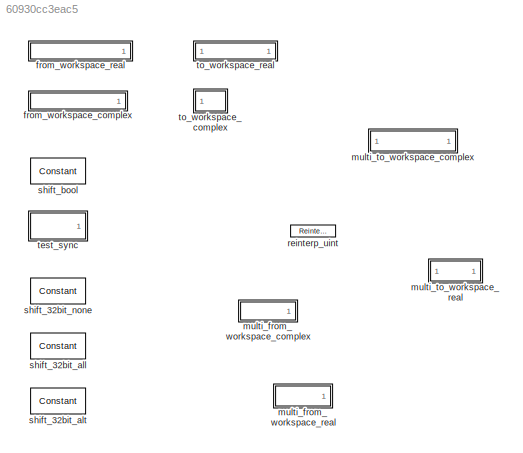
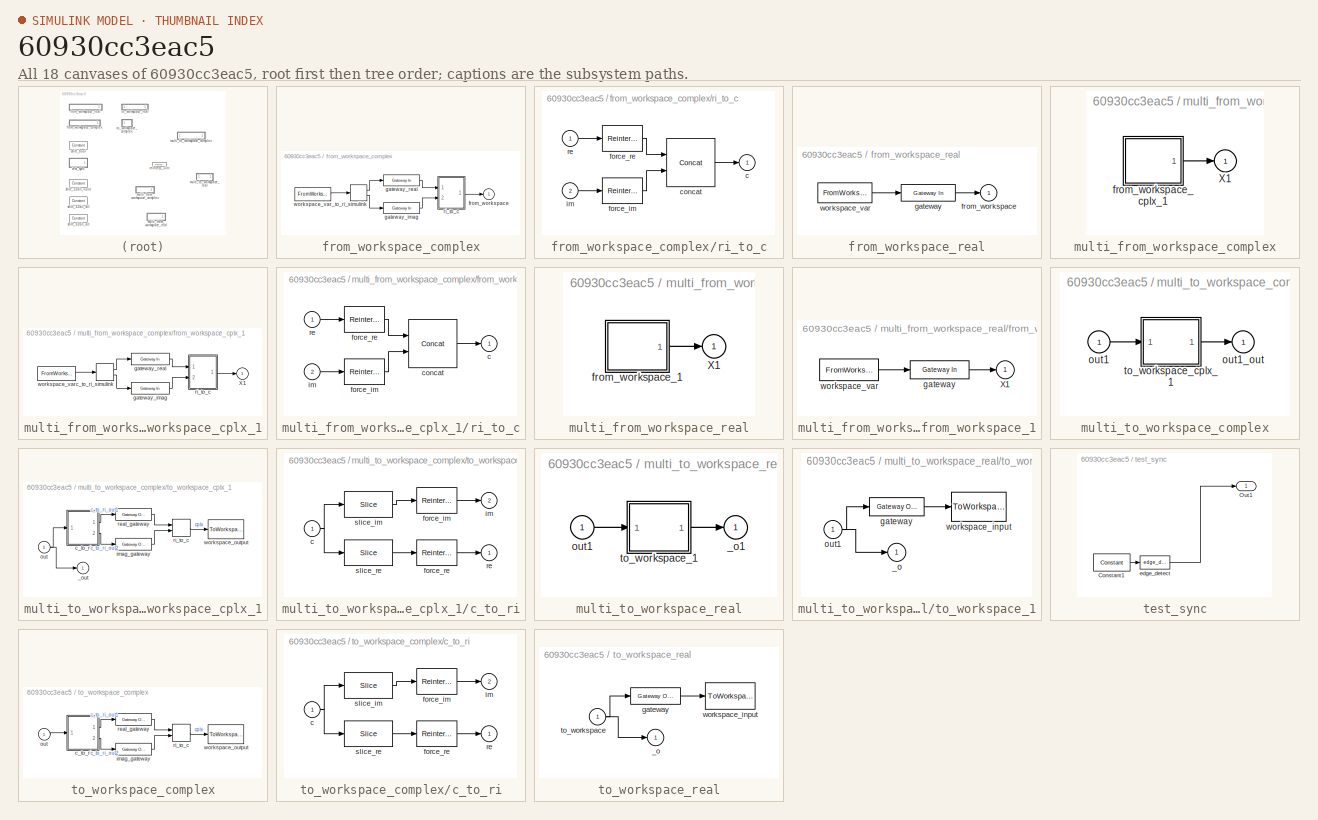
[diagram: thumbnail index - all 18 canvases of the model, root first then tree order]
MODEL slx_60930cc3eac5
KIND library
BLOCK [SubSystem] from_workspace_complex
  FunctionWithSeparateData = off
  MaskHideContents = off
  MinAlgLoopOccurrences = off
  Opaque = off
  Ports = [0, 1]
  PropExecContextOutsideSubsystem = off
  RTWSystemCode = Auto
  RequestExecContextInheritance = off
  UserDataPersistent = on
BLOCK [ComplexToRealImag] from_workspace_complex/c_to_ri_simulink
  Ports = [1, 2]
BLOCK [Outport] from_workspace_complex/from_workspace
  IconDisplay = Port number
BLOCK [Reference] from_workspace_complex/gateway_imag  REF=xbsIndex_r4/Gateway In
  ADCChannel = '1'
  LOCs = {}
  Ports = [1, 1]
  SourceBlock = xbsIndex_r4/Gateway In
  SourceType = Xilinx Gateway In Block
  UseAsADC = off
  arith_type = Signed  (2's comp)
  bin_pt = 17
  block_type = gatewayin
  dbl_ovrd = off
  exp_width = 8
  frac_width = 24
  gui_display_data_type = Fixed-point
  has_advanced_control = 0
  hdl_port = on
  infoedit = Gateway in block.  Converts inputs of type Simulink integer, single, double and fixed-point to  Xilinx fixed-point or floating-point data type.<br><br>Hardware notes:  In hardware these blocks become top level input ports.  <repeated x6 — deduplicated; at blocks: gateway_imag, gateway_real, gateway>
  inherit_from_input = off
  locs_specified = off
  n_bits = 18
  overflow = Wrap
  period = 1
  preci_type = Single
  quantization = Truncate
  sg_icon_stat = 65,20,1,1,white,yellow,1,00d3666e,right,,[ ],[ ]
  sg_mask_display = fprintf('','COMMENT: begin icon graphics');\npatch([0 65 65 0 0 ],[0 0 20 20 0 ],[0.95 0.93 0.65 ]);\nplot([0 65 65 0 0 ],[0 0 20 20 0 ]);\npatch([27.55 30.44 32.44 34.44 36.44 32.44 29.55 27.55 ],[12.22 12.22 14.22 12.22 14.22 14.22 14.22 12.22 ],[1 1 1 ]);\npatch([29.55 32.44 30.44 27.55 29.55 ],[10.22 10.22 12.22 12.22 10.22 ],[0.985 0.979 0.895 ]);\npatch([27.55 30.44 32.44 29.55 27.55 ],[8.22 8.22...<+383ch>  <repeated x6 — deduplicated; at blocks: gateway_imag, gateway_real, gateway>
  sggui_pos = -1,-1,-1,-1
  timing_constraint = None
  xl_area = [0,0,0,0,0,0,0]
  xl_use_area = off
BLOCK [Reference] from_workspace_complex/gateway_real  REF=xbsIndex_r4/Gateway In
  ADCChannel = '1'
  LOCs = {}
  Ports = [1, 1]
  SourceBlock = xbsIndex_r4/Gateway In
  SourceType = Xilinx Gateway In Block
  UseAsADC = off
  arith_type = Signed  (2's comp)
  bin_pt = 17
  block_type = gatewayin
  dbl_ovrd = off
  exp_width = 8
  frac_width = 24
  gui_display_data_type = Fixed-point
  has_advanced_control = 0
  hdl_port = on
  inherit_from_input = off
  locs_specified = off
  n_bits = 18
  overflow = Wrap
  period = 1
  preci_type = Single
  quantization = Truncate
  sg_icon_stat = 65,20,1,1,white,yellow,1,00d3666e,right,,[ ],[ ]
  sggui_pos = -1,-1,-1,-1
  timing_constraint = None
  xl_area = [0,0,0,0,0,0,0]
  xl_use_area = off
BLOCK [SubSystem] from_workspace_complex/ri_to_c
  FunctionWithSeparateData = off
  MaskHideContents = off
  MinAlgLoopOccurrences = off
  Opaque = off
  Ports = [2, 1]
  PropExecContextOutsideSubsystem = off
  RTWSystemCode = Auto
  RequestExecContextInheritance = off
BLOCK [Outport] from_workspace_complex/ri_to_c/c
  IconDisplay = Port number
BLOCK [Reference] from_workspace_complex/ri_to_c/concat  REF=xbsIndex_r4/Concat
  Ports = [2, 1]
  SourceBlock = xbsIndex_r4/Concat
  SourceType = Xilinx Bus Concatenator Block
  block_type = concat
  dbl_ovrd = off
  has_advanced_control = 0
  infoedit = Concatenates two or more inputs.  Output will be cast to an unsigned value with the binary point at zero.
  num_inputs = 2
  sg_icon_stat = 60,60,2,1,white,blue,0,16398980,right,,[ ],[ ]
  sg_mask_display = fprintf('','COMMENT: begin icon graphics');\npatch([0 60 60 0 0 ],[0 0 60 60 0 ],[0.77 0.82 0.91 ]);\nplot([0 60 60 0 0 ],[0 0 60 60 0 ]);\npatch([12.2 23.76 31.76 39.76 47.76 31.76 20.2 12.2 ],[38.88 38.88 46.88 38.88 46.88 46.88 46.88 38.88 ],[1 1 1 ]);\npatch([20.2 31.76 23.76 12.2 20.2 ],[30.88 30.88 38.88 38.88 30.88 ],[0.931 0.946 0.973 ]);\npatch([12.2 23.76 31.76 20.2 12.2 ],[22.88 22.88 30.88 ...<+402ch>
  sggui_pos = -1,-1,-1,-1
BLOCK [Reference] from_workspace_complex/ri_to_c/force_im  REF=xbsIndex_r4/Reinterpret
  Ports = [1, 1]
  SourceBlock = xbsIndex_r4/Reinterpret
  SourceType = Xilinx Type Reinterpreter Block
  arith_type = Unsigned
  bin_pt = 0
  block_type = reinterpret
  force_arith_type = on
  force_bin_pt = on
  has_advanced_control = 0
  infoedit = Changes signal type without altering the binary representation.   You can change the signal between signed and unsigned, and relocate the binary point.<br><br>Hardware notes: In hardware this block costs nothing.<br><br>Example:  Suppose the input is 6 bits wide, signed, with 2 fractional bits, and the output is forced to unsigned with 0 fractional bits.  Then an input of -2.0 (1110.00 in binary 2...<+58ch>  <repeated x9 — deduplicated; at blocks: force_im, force_re, reinterp_uint>
  sg_icon_stat = 50,32,1,1,white,blue,0,6b04d0b0,right,,[ ],[ ]
  sg_mask_display = fprintf('','COMMENT: begin icon graphics');\npatch([0 50 50 0 0 ],[0 0 32 32 0 ],[0.77 0.82 0.91 ]);\nplot([0 50 50 0 0 ],[0 0 32 32 0 ]);\npatch([16.1 21.88 25.88 29.88 33.88 25.88 20.1 16.1 ],[20.44 20.44 24.44 20.44 24.44 24.44 24.44 20.44 ],[1 1 1 ]);\npatch([20.1 25.88 21.88 16.1 20.1 ],[16.44 16.44 20.44 20.44 16.44 ],[0.931 0.946 0.973 ]);\npatch([16.1 21.88 25.88 20.1 16.1 ],[12.44 12.44 16.44 ...<+294ch>  <repeated x8 — deduplicated; at blocks: force_im, force_re>
  sggui_pos = -1,-1,-1,-1
BLOCK [Reference] from_workspace_complex/ri_to_c/force_re  REF=xbsIndex_r4/Reinterpret
  Ports = [1, 1]
  SourceBlock = xbsIndex_r4/Reinterpret
  SourceType = Xilinx Type Reinterpreter Block
  arith_type = Unsigned
  bin_pt = 0
  block_type = reinterpret
  force_arith_type = on
  force_bin_pt = on
  has_advanced_control = 0
  sg_icon_stat = 50,32,1,1,white,blue,0,6b04d0b0,right,,[ ],[ ]
  sggui_pos = -1,-1,-1,-1
BLOCK [Inport] from_workspace_complex/ri_to_c/im
  IconDisplay = Port number
  Port = 2
BLOCK [Inport] from_workspace_complex/ri_to_c/re
  IconDisplay = Port number
BLOCK [FromWorkspace] from_workspace_complex/workspace_var
  SampleTime = 0
  VariableName = from_workspace
  ZeroCross = on
BLOCK [SubSystem] from_workspace_real
  FunctionWithSeparateData = off
  MaskHideContents = off
  MinAlgLoopOccurrences = off
  Opaque = off
  Ports = [0, 1]
  PropExecContextOutsideSubsystem = off
  RTWSystemCode = Auto
  RequestExecContextInheritance = off
  UserDataPersistent = on
BLOCK [Outport] from_workspace_real/from_workspace
  IconDisplay = Port number
BLOCK [Reference] from_workspace_real/gateway  REF=xbsIndex_r4/Gateway In
  ADCChannel = '1'
  LOCs = {}
  Ports = [1, 1]
  SourceBlock = xbsIndex_r4/Gateway In
  SourceType = Xilinx Gateway In Block
  UseAsADC = off
  arith_type = Signed  (2's comp)
  bin_pt = 17
  block_type = gatewayin
  dbl_ovrd = off
  exp_width = 8
  frac_width = 24
  gui_display_data_type = Fixed-point
  has_advanced_control = 0
  hdl_port = on
  inherit_from_input = off
  locs_specified = off
  n_bits = 18
  overflow = Wrap
  period = 1
  preci_type = Single
  quantization = Truncate
  sg_icon_stat = 65,20,1,1,white,yellow,1,00d3666e,right,,[ ],[ ]
  sggui_pos = -1,-1,-1,-1
  timing_constraint = None
  xl_area = [0,0,0,0,0,0,0]
  xl_use_area = off
BLOCK [FromWorkspace] from_workspace_real/workspace_var
  SampleTime = 0
  VariableName = from_workspace
  ZeroCross = on
BLOCK [SubSystem] multi_from_workspace_complex
  FunctionWithSeparateData = off
  MaskHideContents = off
  MinAlgLoopOccurrences = off
  Opaque = off
  Ports = [0, 1]
  PropExecContextOutsideSubsystem = off
  RTWSystemCode = Auto
  RequestExecContextInheritance = off
  UserDataPersistent = on
BLOCK [Outport] multi_from_workspace_complex/X1
  IconDisplay = Port number
BLOCK [SubSystem] multi_from_workspace_complex/from_workspace_cplx_1
  FunctionWithSeparateData = off
  MaskHideContents = off
  MinAlgLoopOccurrences = off
  Opaque = off
  Ports = [0, 1]
  PropExecContextOutsideSubsystem = off
  RTWSystemCode = Auto
  RequestExecContextInheritance = off
BLOCK [Outport] multi_from_workspace_complex/from_workspace_cplx_1/X1
  IconDisplay = Port number
BLOCK [ComplexToRealImag] multi_from_workspace_complex/from_workspace_cplx_1/c_to_ri_simulink
  Ports = [1, 2]
BLOCK [Reference] multi_from_workspace_complex/from_workspace_cplx_1/gateway_imag  REF=xbsIndex_r4/Gateway In
  ADCChannel = '1'
  LOCs = {}
  Ports = [1, 1]
  SourceBlock = xbsIndex_r4/Gateway In
  SourceType = Xilinx Gateway In Block
  UseAsADC = off
  arith_type = Signed  (2's comp)
  bin_pt = 17
  block_type = gatewayin
  dbl_ovrd = off
  exp_width = 8
  frac_width = 24
  gui_display_data_type = Fixed-point
  has_advanced_control = 0
  hdl_port = on
  inherit_from_input = off
  locs_specified = off
  n_bits = 18
  overflow = Wrap
  period = 1
  preci_type = Single
  quantization = Truncate
  sg_icon_stat = 65,20,1,1,white,yellow,1,00d3666e,right,,[ ],[ ]
  sggui_pos = -1,-1,-1,-1
  timing_constraint = None
  xl_area = [0,0,0,0,0,0,0]
  xl_use_area = off
BLOCK [Reference] multi_from_workspace_complex/from_workspace_cplx_1/gateway_real  REF=xbsIndex_r4/Gateway In
  ADCChannel = '1'
  LOCs = {}
  Ports = [1, 1]
  SourceBlock = xbsIndex_r4/Gateway In
  SourceType = Xilinx Gateway In Block
  UseAsADC = off
  arith_type = Signed  (2's comp)
  bin_pt = 17
  block_type = gatewayin
  dbl_ovrd = off
  exp_width = 8
  frac_width = 24
  gui_display_data_type = Fixed-point
  has_advanced_control = 0
  hdl_port = on
  inherit_from_input = off
  locs_specified = off
  n_bits = 18
  overflow = Wrap
  period = 1
  preci_type = Single
  quantization = Truncate
  sg_icon_stat = 65,20,1,1,white,yellow,1,00d3666e,right,,[ ],[ ]
  sggui_pos = -1,-1,-1,-1
  timing_constraint = None
  xl_area = [0,0,0,0,0,0,0]
  xl_use_area = off
BLOCK [SubSystem] multi_from_workspace_complex/from_workspace_cplx_1/ri_to_c
  FunctionWithSeparateData = off
  MaskHideContents = off
  MinAlgLoopOccurrences = off
  Opaque = off
  Ports = [2, 1]
  PropExecContextOutsideSubsystem = off
  RTWSystemCode = Auto
  RequestExecContextInheritance = off
BLOCK [Outport] multi_from_workspace_complex/from_workspace_cplx_1/ri_to_c/c
  IconDisplay = Port number
BLOCK [Reference] multi_from_workspace_complex/from_workspace_cplx_1/ri_to_c/concat  REF=xbsIndex_r4/Concat
  Ports = [2, 1]
  SourceBlock = xbsIndex_r4/Concat
  SourceType = Xilinx Bus Concatenator Block
  block_type = concat
  dbl_ovrd = off
  has_advanced_control = 0
  infoedit = Concatenates two or more inputs.  Output will be cast to an unsigned value with the binary point at zero.
  num_inputs = 2
  sg_icon_stat = 60,60,2,1,white,blue,0,16398980,right,,[ ],[ ]
  sg_mask_display = fprintf('','COMMENT: begin icon graphics');\npatch([0 60 60 0 0 ],[0 0 60 60 0 ],[0.77 0.82 0.91 ]);\nplot([0 60 60 0 0 ],[0 0 60 60 0 ]);\npatch([12.2 23.76 31.76 39.76 47.76 31.76 20.2 12.2 ],[38.88 38.88 46.88 38.88 46.88 46.88 46.88 38.88 ],[1 1 1 ]);\npatch([20.2 31.76 23.76 12.2 20.2 ],[30.88 30.88 38.88 38.88 30.88 ],[0.931 0.946 0.973 ]);\npatch([12.2 23.76 31.76 20.2 12.2 ],[22.88 22.88 30.88 ...<+402ch>
  sggui_pos = -1,-1,-1,-1
BLOCK [Reference] multi_from_workspace_complex/from_workspace_cplx_1/ri_to_c/force_im  REF=xbsIndex_r4/Reinterpret
  Ports = [1, 1]
  SourceBlock = xbsIndex_r4/Reinterpret
  SourceType = Xilinx Type Reinterpreter Block
  arith_type = Unsigned
  bin_pt = 0
  block_type = reinterpret
  force_arith_type = on
  force_bin_pt = on
  has_advanced_control = 0
  sg_icon_stat = 50,32,1,1,white,blue,0,6b04d0b0,right,,[ ],[ ]
  sggui_pos = -1,-1,-1,-1
BLOCK [Reference] multi_from_workspace_complex/from_workspace_cplx_1/ri_to_c/force_re  REF=xbsIndex_r4/Reinterpret
  Ports = [1, 1]
  SourceBlock = xbsIndex_r4/Reinterpret
  SourceType = Xilinx Type Reinterpreter Block
  arith_type = Unsigned
  bin_pt = 0
  block_type = reinterpret
  force_arith_type = on
  force_bin_pt = on
  has_advanced_control = 0
  sg_icon_stat = 50,32,1,1,white,blue,0,6b04d0b0,right,,[ ],[ ]
  sggui_pos = -1,-1,-1,-1
BLOCK [Inport] multi_from_workspace_complex/from_workspace_cplx_1/ri_to_c/im
  IconDisplay = Port number
  Port = 2
BLOCK [Inport] multi_from_workspace_complex/from_workspace_cplx_1/ri_to_c/re
  IconDisplay = Port number
BLOCK [FromWorkspace] multi_from_workspace_complex/from_workspace_cplx_1/workspace_var
  SampleTime = 0
  VariableName = X1
  ZeroCross = on
BLOCK [SubSystem] multi_from_workspace_real
  FunctionWithSeparateData = off
  MaskHideContents = off
  MinAlgLoopOccurrences = off
  Opaque = off
  Ports = [0, 1]
  PropExecContextOutsideSubsystem = off
  RTWSystemCode = Auto
  RequestExecContextInheritance = off
  UserDataPersistent = on
BLOCK [Outport] multi_from_workspace_real/X1
  IconDisplay = Port number
BLOCK [SubSystem] multi_from_workspace_real/from_workspace_1
  FunctionWithSeparateData = off
  MaskHideContents = off
  MinAlgLoopOccurrences = off
  Opaque = off
  Ports = [0, 1]
  PropExecContextOutsideSubsystem = off
  RTWSystemCode = Auto
  RequestExecContextInheritance = off
BLOCK [Outport] multi_from_workspace_real/from_workspace_1/X1
  IconDisplay = Port number
BLOCK [Reference] multi_from_workspace_real/from_workspace_1/gateway  REF=xbsIndex_r4/Gateway In
  ADCChannel = '1'
  LOCs = {}
  Ports = [1, 1]
  SourceBlock = xbsIndex_r4/Gateway In
  SourceType = Xilinx Gateway In Block
  UseAsADC = off
  arith_type = Signed  (2's comp)
  bin_pt = 17
  block_type = gatewayin
  dbl_ovrd = off
  exp_width = 8
  frac_width = 24
  gui_display_data_type = Fixed-point
  has_advanced_control = 0
  hdl_port = on
  inherit_from_input = off
  locs_specified = off
  n_bits = 18
  overflow = Wrap
  period = 1
  preci_type = Single
  quantization = Truncate
  sg_icon_stat = 65,20,1,1,white,yellow,1,00d3666e,right,,[ ],[ ]
  sggui_pos = -1,-1,-1,-1
  timing_constraint = None
  xl_area = [0,0,0,0,0,0,0]
  xl_use_area = off
BLOCK [FromWorkspace] multi_from_workspace_real/from_workspace_1/workspace_var
  SampleTime = 0
  VariableName = X1
  ZeroCross = on
BLOCK [SubSystem] multi_to_workspace_complex
  FunctionWithSeparateData = off
  MaskHideContents = off
  MinAlgLoopOccurrences = off
  Opaque = off
  Ports = [1, 1]
  PropExecContextOutsideSubsystem = off
  RTWSystemCode = Auto
  RequestExecContextInheritance = off
BLOCK [Inport] multi_to_workspace_complex/out1
  IconDisplay = Port number
BLOCK [Outport] multi_to_workspace_complex/out1_out
  IconDisplay = Port number
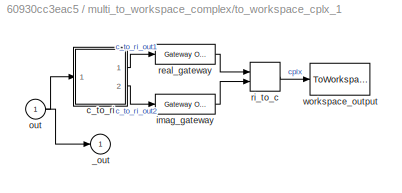
BLOCK [SubSystem] multi_to_workspace_complex/to_workspace_cplx_1
  FunctionWithSeparateData = off
  MaskHideContents = off
  MinAlgLoopOccurrences = off
  Opaque = off
  Ports = [1, 1]
  PropExecContextOutsideSubsystem = off
  RTWSystemCode = Auto
  RequestExecContextInheritance = off
BLOCK [Outport] multi_to_workspace_complex/to_workspace_cplx_1/_out
  IconDisplay = Port number
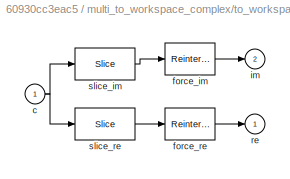
BLOCK [SubSystem] multi_to_workspace_complex/to_workspace_cplx_1/c_to_ri
  FunctionWithSeparateData = off
  MaskHideContents = off
  MinAlgLoopOccurrences = off
  Opaque = off
  Ports = [1, 2]
  PropExecContextOutsideSubsystem = off
  RTWSystemCode = Auto
  RequestExecContextInheritance = off
BLOCK [Inport] multi_to_workspace_complex/to_workspace_cplx_1/c_to_ri/c
  IconDisplay = Port number
BLOCK [Reference] multi_to_workspace_complex/to_workspace_cplx_1/c_to_ri/force_im  REF=xbsIndex_r4/Reinterpret
  Ports = [1, 1]
  SourceBlock = xbsIndex_r4/Reinterpret
  SourceType = Xilinx Type Reinterpreter Block
  arith_type = Signed  (2's comp)
  bin_pt = 17
  block_type = reinterpret
  force_arith_type = on
  force_bin_pt = on
  has_advanced_control = 0
  sg_icon_stat = 50,32,1,1,white,blue,0,6b04d0b0,right,,[ ],[ ]
  sggui_pos = -1,-1,-1,-1
BLOCK [Reference] multi_to_workspace_complex/to_workspace_cplx_1/c_to_ri/force_re  REF=xbsIndex_r4/Reinterpret
  Ports = [1, 1]
  SourceBlock = xbsIndex_r4/Reinterpret
  SourceType = Xilinx Type Reinterpreter Block
  arith_type = Signed  (2's comp)
  bin_pt = 17
  block_type = reinterpret
  force_arith_type = on
  force_bin_pt = on
  has_advanced_control = 0
  sg_icon_stat = 50,32,1,1,white,blue,0,6b04d0b0,right,,[ ],[ ]
  sggui_pos = -1,-1,-1,-1
BLOCK [Outport] multi_to_workspace_complex/to_workspace_cplx_1/c_to_ri/im
  IconDisplay = Port number
  Port = 2
BLOCK [Outport] multi_to_workspace_complex/to_workspace_cplx_1/c_to_ri/re
  IconDisplay = Port number
BLOCK [Reference] multi_to_workspace_complex/to_workspace_cplx_1/c_to_ri/slice_im  REF=xbsIndex_r4/Slice
  Ports = [1, 1]
  SourceBlock = xbsIndex_r4/Slice
  SourceType = Xilinx Bit Slice Extractor Block
  base0 = LSB of Input
  base1 = MSB of Input
  bit0 = 0
  bit1 = 0
  block_type = slice
  boolean_output = off
  dbl_ovrd = off
  has_advanced_control = 0
  infoedit = Extracts a given range of bits from each input sample and presents it at the output.  The output type is ordinarily unsigned with binary point at zero, but can be Boolean when the slice is one bit wide.<br><br>Hardware notes: In hardware this block costs nothing.  <repeated x4 — deduplicated; at blocks: slice_im, slice_re>
  mode = Lower Bit Location + Width
  nbits = 18
  sg_icon_stat = 60,32,1,1,white,blue,0,1fd851a7,right,,[ ],[ ]
  sg_mask_display = fprintf('','COMMENT: begin icon graphics');\npatch([0 60 60 0 0 ],[0 0 32 32 0 ],[0.77 0.82 0.91 ]);\nplot([0 60 60 0 0 ],[0 0 32 32 0 ]);\npatch([21.1 26.88 30.88 34.88 38.88 30.88 25.1 21.1 ],[20.44 20.44 24.44 20.44 24.44 24.44 24.44 20.44 ],[1 1 1 ]);\npatch([25.1 30.88 26.88 21.1 25.1 ],[16.44 16.44 20.44 20.44 16.44 ],[0.931 0.946 0.973 ]);\npatch([21.1 26.88 30.88 25.1 21.1 ],[12.44 12.44 16.44 ...<+304ch>  <repeated x4 — deduplicated; at blocks: slice_im, slice_re>
  sggui_pos = -1,-1,-1,-1
BLOCK [Reference] multi_to_workspace_complex/to_workspace_cplx_1/c_to_ri/slice_re  REF=xbsIndex_r4/Slice
  Ports = [1, 1]
  SourceBlock = xbsIndex_r4/Slice
  SourceType = Xilinx Bit Slice Extractor Block
  base0 = LSB of Input
  base1 = MSB of Input
  bit0 = 0
  bit1 = 0
  block_type = slice
  boolean_output = off
  dbl_ovrd = off
  has_advanced_control = 0
  mode = Upper Bit Location + Width
  nbits = 18
  sg_icon_stat = 60,32,1,1,white,blue,0,1fd851a7,right,,[ ],[ ]
  sggui_pos = -1,-1,-1,-1
BLOCK [Reference] multi_to_workspace_complex/to_workspace_cplx_1/imag_gateway  REF=xbsIndex_r4/Gateway Out
  DACChannel = '1'
  LOCs = {}
  Ports = [1, 1]
  SourceBlock = xbsIndex_r4/Gateway Out
  SourceType = Xilinx Gateway Out Block
  UseAsDAC = off
  block_type = gatewayout
  has_advanced_control = 0
  hdl_port = off
  infoedit = Gateway out block.  Converts Xilinx fixed-point or floating-point type inputs into ouputs of type Simulink integer, single, double, or fixed-point.<br><br>Hardware notes:  In hardware these blocks become top level output ports or are discarded, depending on how they are configured.  <repeated x6 — deduplicated; at blocks: imag_gateway, real_gateway, gateway>
  inherit_from_input = on
  locs_specified = off
  sg_icon_stat = 60,20,1,1,white,grey,1,632ec840,right,,[ ],[ ]
  sg_mask_display = fprintf('','COMMENT: begin icon graphics');\npatch([0 60 60 0 0 ],[0 0 20 20 0 ],[0.88 0.88 0.88 ]);\nplot([0 60 60 0 0 ],[0 0 20 20 0 ]);\npatch([25.55 28.44 30.44 32.44 34.44 30.44 27.55 25.55 ],[12.22 12.22 14.22 12.22 14.22 14.22 14.22 12.22 ],[1 1 1 ]);\npatch([27.55 30.44 28.44 25.55 27.55 ],[10.22 10.22 12.22 12.22 10.22 ],[0.964 0.964 0.964 ]);\npatch([25.55 28.44 30.44 27.55 25.55 ],[8.22 8.22...<+381ch>  <repeated x6 — deduplicated; at blocks: imag_gateway, real_gateway, gateway>
  sggui_pos = -1,-1,-1,-1
  timing_constraint = None
  xl_area = [0,0,0,0,0,0,0]
  xl_use_area = off
BLOCK [Inport] multi_to_workspace_complex/to_workspace_cplx_1/out
  IconDisplay = Port number
BLOCK [Reference] multi_to_workspace_complex/to_workspace_cplx_1/real_gateway  REF=xbsIndex_r4/Gateway Out
  DACChannel = '1'
  LOCs = {}
  Ports = [1, 1]
  SourceBlock = xbsIndex_r4/Gateway Out
  SourceType = Xilinx Gateway Out Block
  UseAsDAC = off
  block_type = gatewayout
  has_advanced_control = 0
  hdl_port = off
  inherit_from_input = on
  locs_specified = off
  sg_icon_stat = 60,20,1,1,white,grey,1,632ec840,right,,[ ],[ ]
  sggui_pos = -1,-1,-1,-1
  timing_constraint = None
  xl_area = [0,0,0,0,0,0,0]
  xl_use_area = off
BLOCK [RealImagToComplex] multi_to_workspace_complex/to_workspace_cplx_1/ri_to_c
  Ports = [2, 1]
BLOCK [ToWorkspace] multi_to_workspace_complex/to_workspace_cplx_1/workspace_output
  MaxDataPoints = inf
  Ports = [1]
  SampleTime = -1
  VariableName = out
BLOCK [SubSystem] multi_to_workspace_real
  FunctionWithSeparateData = off
  MaskHideContents = off
  MinAlgLoopOccurrences = off
  Opaque = off
  Ports = [1, 1]
  PropExecContextOutsideSubsystem = off
  RTWSystemCode = Auto
  RequestExecContextInheritance = off
  UserDataPersistent = on
BLOCK [Outport] multi_to_workspace_real/_o1
  IconDisplay = Port number
BLOCK [Inport] multi_to_workspace_real/out1
  IconDisplay = Port number
BLOCK [SubSystem] multi_to_workspace_real/to_workspace_1
  FunctionWithSeparateData = off
  MaskHideContents = off
  MinAlgLoopOccurrences = off
  Opaque = off
  Ports = [1, 1]
  PropExecContextOutsideSubsystem = off
  RTWSystemCode = Auto
  RequestExecContextInheritance = off
BLOCK [Outport] multi_to_workspace_real/to_workspace_1/_o
  IconDisplay = Port number
BLOCK [Reference] multi_to_workspace_real/to_workspace_1/gateway  REF=xbsIndex_r4/Gateway Out
  DACChannel = '1'
  LOCs = {}
  Ports = [1, 1]
  SourceBlock = xbsIndex_r4/Gateway Out
  SourceType = Xilinx Gateway Out Block
  UseAsDAC = off
  block_type = gatewayout
  has_advanced_control = 0
  hdl_port = off
  inherit_from_input = on
  locs_specified = off
  sg_icon_stat = 60,20,1,1,white,grey,1,632ec840,right,,[ ],[ ]
  sggui_pos = -1,-1,-1,-1
  timing_constraint = None
  xl_area = [0,0,0,0,0,0,0]
  xl_use_area = off
BLOCK [Inport] multi_to_workspace_real/to_workspace_1/out1
  IconDisplay = Port number
BLOCK [ToWorkspace] multi_to_workspace_real/to_workspace_1/workspace_input
  MaxDataPoints = inf
  Ports = [1]
  SampleTime = -1
  VariableName = out1
BLOCK [Reference] reinterp_uint  REF=xbsIndex_r4/Reinterpret
  Ports = [1, 1]
  SourceBlock = xbsIndex_r4/Reinterpret
  SourceType = Xilinx Type Reinterpreter Block
  arith_type = Unsigned
  bin_pt = 0
  block_type = reinterpret
  force_arith_type = on
  force_bin_pt = on
  has_advanced_control = 0
  sg_icon_stat = 45,12,1,1,white,blue,0,6b04d0b0,right,,[ ],[ ]
  sg_mask_display = fprintf('','COMMENT: begin icon graphics');\npatch([0 45 45 0 0 ],[0 0 12 12 0 ],[0.77 0.82 0.91 ]);\nplot([0 45 45 0 0 ],[0 0 12 12 0 ]);\npatch([19.775 21.22 22.22 23.22 24.22 22.22 20.775 19.775 ],[7.11 7.11 8.11 7.11 8.11 8.11 8.11 7.11 ],[1 1 1 ]);\npatch([20.775 22.22 21.22 19.775 20.775 ],[6.11 6.11 7.11 7.11 6.11 ],[0.931 0.946 0.973 ]);\npatch([19.775 21.22 22.22 20.775 19.775 ],[5.11 5.11 6.1...<+297ch>
  sggui_pos = -1,-1,-1,-1
BLOCK [Reference] shift_32bit_all  REF=xbsIndex_r4/Constant
  Ports = [0, 1]
  SourceBlock = xbsIndex_r4/Constant
  SourceType = Xilinx Constant Block Block
  arith_type = Signed (2's comp)
  bin_pt = 0
  block_type = constant
  carry = CIN
  const = -1
  dbl_ovrd = off
  dsp48_infoedit = The use of this block for DSP48 instructions is deprecated.  Please use the Opmode block.
  equ = P=C
  exp_width = 8
  explicit_period = on
  frac_width = 24
  gui_display_data_type = Fixed-point
  has_advanced_control = 0
  inp1 = P
  inp2 = PCIN>>17
  n_bits = 32
  opr = +
  opselect = C
  period = 1
  preci_type = Single
  sg_icon_stat = 55,26,0,1,white,blue,0,43c97d40,right,,[ ],[ ]
  sg_mask_display = fprintf('','COMMENT: begin icon graphics');\npatch([0 55 55 0 0 ],[0 0 26 26 0 ],[0.77 0.82 0.91 ]);\nplot([0 55 55 0 0 ],[0 0 26 26 0 ]);\npatch([20.325 24.66 27.66 30.66 33.66 27.66 23.325 20.325 ],[16.33 16.33 19.33 16.33 19.33 19.33 19.33 16.33 ],[1 1 1 ]);\npatch([23.325 27.66 24.66 20.325 23.325 ],[13.33 13.33 16.33 16.33 13.33 ],[0.931 0.946 0.973 ]);\npatch([20.325 24.66 27.66 23.325 20.325 ],[...<+324ch>
  sggui_pos = -1,-1,-1,-1
BLOCK [Reference] shift_32bit_alt  REF=xbsIndex_r4/Constant
  Ports = [0, 1]
  SourceBlock = xbsIndex_r4/Constant
  SourceType = Xilinx Constant Block Block
  arith_type = Signed (2's comp)
  bin_pt = 0
  block_type = constant
  carry = CIN
  const = bin2dec('10101010101010101010101010101010')
  dbl_ovrd = off
  dsp48_infoedit = The use of this block for DSP48 instructions is deprecated.  Please use the Opmode block.
  equ = P=C
  exp_width = 8
  explicit_period = on
  frac_width = 24
  gui_display_data_type = Fixed-point
  has_advanced_control = 0
  inp1 = P
  inp2 = PCIN>>17
  n_bits = 32
  opr = +
  opselect = C
  period = 1
  preci_type = Single
  sg_icon_stat = 55,26,0,1,white,blue,0,bf9e5da5,right,,[ ],[ ]
  sg_mask_display = fprintf('','COMMENT: begin icon graphics');\npatch([0 55 55 0 0 ],[0 0 26 26 0 ],[0.77 0.82 0.91 ]);\nplot([0 55 55 0 0 ],[0 0 26 26 0 ]);\npatch([20.325 24.66 27.66 30.66 33.66 27.66 23.325 20.325 ],[16.33 16.33 19.33 16.33 19.33 19.33 19.33 16.33 ],[1 1 1 ]);\npatch([23.325 27.66 24.66 20.325 23.325 ],[13.33 13.33 16.33 16.33 13.33 ],[0.931 0.946 0.973 ]);\npatch([20.325 24.66 27.66 23.325 20.325 ],[...<+332ch>
  sggui_pos = -1,-1,-1,-1
BLOCK [Reference] shift_32bit_none  REF=xbsIndex_r4/Constant
  Ports = [0, 1]
  SourceBlock = xbsIndex_r4/Constant
  SourceType = Xilinx Constant Block Block
  arith_type = Signed (2's comp)
  bin_pt = 0
  block_type = constant
  carry = CIN
  const = 0
  dbl_ovrd = off
  dsp48_infoedit = The use of this block for DSP48 instructions is deprecated.  Please use the Opmode block.
  equ = P=C
  exp_width = 8
  explicit_period = on
  frac_width = 24
  gui_display_data_type = Fixed-point
  has_advanced_control = 0
  inp1 = P
  inp2 = PCIN>>17
  n_bits = 32
  opr = +
  opselect = C
  period = 1
  preci_type = Single
  sg_icon_stat = 55,26,0,1,white,blue,0,bf4ddd8b,right,,[ ],[ ]
  sg_mask_display = fprintf('','COMMENT: begin icon graphics');\npatch([0 55 55 0 0 ],[0 0 26 26 0 ],[0.77 0.82 0.91 ]);\nplot([0 55 55 0 0 ],[0 0 26 26 0 ]);\npatch([20.325 24.66 27.66 30.66 33.66 27.66 23.325 20.325 ],[16.33 16.33 19.33 16.33 19.33 19.33 19.33 16.33 ],[1 1 1 ]);\npatch([23.325 27.66 24.66 20.325 23.325 ],[13.33 13.33 16.33 16.33 13.33 ],[0.931 0.946 0.973 ]);\npatch([20.325 24.66 27.66 23.325 20.325 ],[...<+323ch>  <repeated x3 — deduplicated; at blocks: shift_32bit_none, shift_bool, Constant1>
  sggui_pos = -1,-1,-1,-1
BLOCK [Reference] shift_bool  REF=xbsIndex_r4/Constant
  Ports = [0, 1]
  SourceBlock = xbsIndex_r4/Constant
  SourceType = Xilinx Constant Block Block
  arith_type = Boolean
  bin_pt = 0
  block_type = constant
  carry = CIN
  const = 0
  dbl_ovrd = off
  dsp48_infoedit = The use of this block for DSP48 instructions is deprecated.  Please use the Opmode block.
  equ = P=C
  exp_width = 8
  explicit_period = on
  frac_width = 24
  gui_display_data_type = Boolean
  has_advanced_control = 0
  inp1 = P
  inp2 = PCIN>>17
  n_bits = 32
  opr = +
  opselect = C
  period = 1
  preci_type = Single
  sg_icon_stat = 55,26,0,1,white,blue,0,bf4ddd8b,right,,[ ],[ ]
  sggui_pos = -1,-1,-1,-1
BLOCK [SubSystem] test_sync
  FunctionWithSeparateData = off
  MaskHideContents = off
  MinAlgLoopOccurrences = off
  Opaque = off
  Ports = [0, 1]
  PropExecContextOutsideSubsystem = off
  RTWSystemCode = Auto
  RequestExecContextInheritance = off
BLOCK [Reference] test_sync/Constant1  REF=xbsIndex_r4/Constant
  Ports = [0, 1]
  SourceBlock = xbsIndex_r4/Constant
  SourceType = Xilinx Constant Block Block
  arith_type = Boolean
  bin_pt = 14
  block_type = constant
  carry = CIN
  const = 1
  dbl_ovrd = off
  dsp48_infoedit = The use of this block for DSP48 instructions is deprecated.  Please use the Opmode block.
  equ = P=C
  exp_width = 8
  explicit_period = on
  frac_width = 24
  gui_display_data_type = Boolean
  has_advanced_control = 0
  inp1 = P
  inp2 = PCIN>>17
  n_bits = 16
  opr = +
  opselect = C
  period = 1
  preci_type = Single
  sg_icon_stat = 55,26,0,1,white,blue,0,1c72b5be,right,,[ ],[ ]
  sggui_pos = -1,-1,-1,-1
BLOCK [Outport] test_sync/Out1
  IconDisplay = Port number
BLOCK [Reference] test_sync/edge_detect  REF=casper_library_misc/edge_detect  (lib defined in mdl_357510c33b49, mdl_57b5f564ae26, +4 more)
  AttributesFormatString = rising edges\nactive high
  Ports = [1, 1]
  SourceBlock = casper_library_misc/edge_detect
  SourceType = edge_detect
  UserDataPersistent = on
  edge = Rising
  polarity = Active High
  x_in = [0 0.08 0.08 0.16 0.16 0.24 0.24 0.32 0.32 0.4]
  x_out = [0.6 0.68 0.68 0.76 0.76 0.84 0.84 0.92 0.92 1]
  y_in = [-1 -1  1  1  1  1  1  1  1  1]
  y_out = [-1 -1  1  1 -1 -1 -1 -1 -1 -1]
BLOCK [SubSystem] to_workspace_complex
  FunctionWithSeparateData = off
  MaskHideContents = off
  MinAlgLoopOccurrences = off
  Opaque = off
  Ports = [1]
  PropExecContextOutsideSubsystem = off
  RTWSystemCode = Auto
  RequestExecContextInheritance = off
BLOCK [SubSystem] to_workspace_complex/c_to_ri
  FunctionWithSeparateData = off
  MaskHideContents = off
  MinAlgLoopOccurrences = off
  Opaque = off
  Ports = [1, 2]
  PropExecContextOutsideSubsystem = off
  RTWSystemCode = Auto
  RequestExecContextInheritance = off
BLOCK [Inport] to_workspace_complex/c_to_ri/c
  IconDisplay = Port number
BLOCK [Reference] to_workspace_complex/c_to_ri/force_im  REF=xbsIndex_r4/Reinterpret
  Ports = [1, 1]
  SourceBlock = xbsIndex_r4/Reinterpret
  SourceType = Xilinx Type Reinterpreter Block
  arith_type = Signed  (2's comp)
  bin_pt = 17
  block_type = reinterpret
  force_arith_type = on
  force_bin_pt = on
  has_advanced_control = 0
  sg_icon_stat = 50,32,1,1,white,blue,0,6b04d0b0,right,,[ ],[ ]
  sggui_pos = -1,-1,-1,-1
BLOCK [Reference] to_workspace_complex/c_to_ri/force_re  REF=xbsIndex_r4/Reinterpret
  Ports = [1, 1]
  SourceBlock = xbsIndex_r4/Reinterpret
  SourceType = Xilinx Type Reinterpreter Block
  arith_type = Signed  (2's comp)
  bin_pt = 17
  block_type = reinterpret
  force_arith_type = on
  force_bin_pt = on
  has_advanced_control = 0
  sg_icon_stat = 50,32,1,1,white,blue,0,6b04d0b0,right,,[ ],[ ]
  sggui_pos = -1,-1,-1,-1
BLOCK [Outport] to_workspace_complex/c_to_ri/im
  IconDisplay = Port number
  Port = 2
BLOCK [Outport] to_workspace_complex/c_to_ri/re
  IconDisplay = Port number
BLOCK [Reference] to_workspace_complex/c_to_ri/slice_im  REF=xbsIndex_r4/Slice
  Ports = [1, 1]
  SourceBlock = xbsIndex_r4/Slice
  SourceType = Xilinx Bit Slice Extractor Block
  base0 = LSB of Input
  base1 = MSB of Input
  bit0 = 0
  bit1 = 0
  block_type = slice
  boolean_output = off
  dbl_ovrd = off
  has_advanced_control = 0
  mode = Lower Bit Location + Width
  nbits = 18
  sg_icon_stat = 60,32,1,1,white,blue,0,1fd851a7,right,,[ ],[ ]
  sggui_pos = -1,-1,-1,-1
BLOCK [Reference] to_workspace_complex/c_to_ri/slice_re  REF=xbsIndex_r4/Slice
  Ports = [1, 1]
  SourceBlock = xbsIndex_r4/Slice
  SourceType = Xilinx Bit Slice Extractor Block
  base0 = LSB of Input
  base1 = MSB of Input
  bit0 = 0
  bit1 = 0
  block_type = slice
  boolean_output = off
  dbl_ovrd = off
  has_advanced_control = 0
  mode = Upper Bit Location + Width
  nbits = 18
  sg_icon_stat = 60,32,1,1,white,blue,0,1fd851a7,right,,[ ],[ ]
  sggui_pos = -1,-1,-1,-1
BLOCK [Reference] to_workspace_complex/imag_gateway  REF=xbsIndex_r4/Gateway Out
  DACChannel = '1'
  LOCs = {}
  Ports = [1, 1]
  SourceBlock = xbsIndex_r4/Gateway Out
  SourceType = Xilinx Gateway Out Block
  UseAsDAC = off
  block_type = gatewayout
  has_advanced_control = 0
  hdl_port = off
  inherit_from_input = on
  locs_specified = off
  sg_icon_stat = 60,20,1,1,white,grey,1,632ec840,right,,[ ],[ ]
  sggui_pos = -1,-1,-1,-1
  timing_constraint = None
  xl_area = [0,0,0,0,0,0,0]
  xl_use_area = off
BLOCK [Inport] to_workspace_complex/out
  IconDisplay = Port number
BLOCK [Reference] to_workspace_complex/real_gateway  REF=xbsIndex_r4/Gateway Out
  DACChannel = '1'
  LOCs = {}
  Ports = [1, 1]
  SourceBlock = xbsIndex_r4/Gateway Out
  SourceType = Xilinx Gateway Out Block
  UseAsDAC = off
  block_type = gatewayout
  has_advanced_control = 0
  hdl_port = off
  inherit_from_input = on
  locs_specified = off
  sg_icon_stat = 60,20,1,1,white,grey,1,632ec840,right,,[ ],[ ]
  sggui_pos = -1,-1,-1,-1
  timing_constraint = None
  xl_area = [0,0,0,0,0,0,0]
  xl_use_area = off
BLOCK [RealImagToComplex] to_workspace_complex/ri_to_c
  Ports = [2, 1]
BLOCK [ToWorkspace] to_workspace_complex/workspace_output
  MaxDataPoints = inf
  Ports = [1]
  SampleTime = -1
  VariableName = out
BLOCK [SubSystem] to_workspace_real
  FunctionWithSeparateData = off
  MaskHideContents = off
  MinAlgLoopOccurrences = off
  Opaque = off
  Ports = [1, 1]
  PropExecContextOutsideSubsystem = off
  RTWSystemCode = Auto
  RequestExecContextInheritance = off
  UserDataPersistent = on
BLOCK [Outport] to_workspace_real/_o
  IconDisplay = Port number
BLOCK [Reference] to_workspace_real/gateway  REF=xbsIndex_r4/Gateway Out
  DACChannel = '1'
  LOCs = {}
  Ports = [1, 1]
  SourceBlock = xbsIndex_r4/Gateway Out
  SourceType = Xilinx Gateway Out Block
  UseAsDAC = off
  block_type = gatewayout
  has_advanced_control = 0
  hdl_port = off
  inherit_from_input = on
  locs_specified = off
  sg_icon_stat = 60,20,1,1,white,grey,1,632ec840,right,,[ ],[ ]
  sggui_pos = -1,-1,-1,-1
  timing_constraint = None
  xl_area = [0,0,0,0,0,0,0]
  xl_use_area = off
BLOCK [Inport] to_workspace_real/to_workspace
  IconDisplay = Port number
BLOCK [ToWorkspace] to_workspace_real/workspace_input
  MaxDataPoints = inf
  Ports = [1]
  SampleTime = -1
  VariableName = to_workspace
LINE from_workspace_complex/c_to_ri_simulink:1 -> from_workspace_complex/gateway_real:1
LINE from_workspace_complex/c_to_ri_simulink:2 -> from_workspace_complex/gateway_imag:1
LINE from_workspace_complex/gateway_imag:1 -> from_workspace_complex/ri_to_c:2
LINE from_workspace_complex/gateway_real:1 -> from_workspace_complex/ri_to_c:1
LINE from_workspace_complex/ri_to_c/concat:1 -> from_workspace_complex/ri_to_c/c:1
LINE from_workspace_complex/ri_to_c/force_im:1 -> from_workspace_complex/ri_to_c/concat:2
LINE from_workspace_complex/ri_to_c/force_re:1 -> from_workspace_complex/ri_to_c/concat:1
LINE from_workspace_complex/ri_to_c/im:1 -> from_workspace_complex/ri_to_c/force_im:1
LINE from_workspace_complex/ri_to_c/re:1 -> from_workspace_complex/ri_to_c/force_re:1
LINE from_workspace_complex/ri_to_c:1 -> from_workspace_complex/from_workspace:1
LINE from_workspace_complex/workspace_var:1 -> from_workspace_complex/c_to_ri_simulink:1
LINE from_workspace_real/gateway:1 -> from_workspace_real/from_workspace:1
LINE from_workspace_real/workspace_var:1 -> from_workspace_real/gateway:1
LINE multi_from_workspace_complex/from_workspace_cplx_1/c_to_ri_simulink:1 -> multi_from_workspace_complex/from_workspace_cplx_1/gateway_real:1
LINE multi_from_workspace_complex/from_workspace_cplx_1/c_to_ri_simulink:2 -> multi_from_workspace_complex/from_workspace_cplx_1/gateway_imag:1
LINE multi_from_workspace_complex/from_workspace_cplx_1/gateway_imag:1 -> multi_from_workspace_complex/from_workspace_cplx_1/ri_to_c:2
LINE multi_from_workspace_complex/from_workspace_cplx_1/gateway_real:1 -> multi_from_workspace_complex/from_workspace_cplx_1/ri_to_c:1
LINE multi_from_workspace_complex/from_workspace_cplx_1/ri_to_c/concat:1 -> multi_from_workspace_complex/from_workspace_cplx_1/ri_to_c/c:1
LINE multi_from_workspace_complex/from_workspace_cplx_1/ri_to_c/force_im:1 -> multi_from_workspace_complex/from_workspace_cplx_1/ri_to_c/concat:2
LINE multi_from_workspace_complex/from_workspace_cplx_1/ri_to_c/force_re:1 -> multi_from_workspace_complex/from_workspace_cplx_1/ri_to_c/concat:1
LINE multi_from_workspace_complex/from_workspace_cplx_1/ri_to_c/im:1 -> multi_from_workspace_complex/from_workspace_cplx_1/ri_to_c/force_im:1
LINE multi_from_workspace_complex/from_workspace_cplx_1/ri_to_c/re:1 -> multi_from_workspace_complex/from_workspace_cplx_1/ri_to_c/force_re:1
LINE multi_from_workspace_complex/from_workspace_cplx_1/ri_to_c:1 -> multi_from_workspace_complex/from_workspace_cplx_1/X1:1
LINE multi_from_workspace_complex/from_workspace_cplx_1/workspace_var:1 -> multi_from_workspace_complex/from_workspace_cplx_1/c_to_ri_simulink:1
LINE multi_from_workspace_complex/from_workspace_cplx_1:1 -> multi_from_workspace_complex/X1:1
LINE multi_from_workspace_real/from_workspace_1/gateway:1 -> multi_from_workspace_real/from_workspace_1/X1:1
LINE multi_from_workspace_real/from_workspace_1/workspace_var:1 -> multi_from_workspace_real/from_workspace_1/gateway:1
LINE multi_from_workspace_real/from_workspace_1:1 -> multi_from_workspace_real/X1:1
LINE multi_to_workspace_complex/out1:1 -> multi_to_workspace_complex/to_workspace_cplx_1:1
NET multi_to_workspace_complex/to_workspace_cplx_1/c_to_ri/c:1 -> multi_to_workspace_complex/to_workspace_cplx_1/c_to_ri/slice_im:1, multi_to_workspace_complex/to_workspace_cplx_1/c_to_ri/slice_re:1
LINE multi_to_workspace_complex/to_workspace_cplx_1/c_to_ri/force_im:1 -> multi_to_workspace_complex/to_workspace_cplx_1/c_to_ri/im:1
LINE multi_to_workspace_complex/to_workspace_cplx_1/c_to_ri/force_re:1 -> multi_to_workspace_complex/to_workspace_cplx_1/c_to_ri/re:1
LINE multi_to_workspace_complex/to_workspace_cplx_1/c_to_ri/slice_im:1 -> multi_to_workspace_complex/to_workspace_cplx_1/c_to_ri/force_im:1
LINE multi_to_workspace_complex/to_workspace_cplx_1/c_to_ri/slice_re:1 -> multi_to_workspace_complex/to_workspace_cplx_1/c_to_ri/force_re:1
LINE multi_to_workspace_complex/to_workspace_cplx_1/c_to_ri:1 -> multi_to_workspace_complex/to_workspace_cplx_1/real_gateway:1
LINE multi_to_workspace_complex/to_workspace_cplx_1/c_to_ri:2 -> multi_to_workspace_complex/to_workspace_cplx_1/imag_gateway:1
LINE multi_to_workspace_complex/to_workspace_cplx_1/imag_gateway:1 -> multi_to_workspace_complex/to_workspace_cplx_1/ri_to_c:2
NET multi_to_workspace_complex/to_workspace_cplx_1/out:1 -> multi_to_workspace_complex/to_workspace_cplx_1/_out:1, multi_to_workspace_complex/to_workspace_cplx_1/c_to_ri:1
LINE multi_to_workspace_complex/to_workspace_cplx_1/real_gateway:1 -> multi_to_workspace_complex/to_workspace_cplx_1/ri_to_c:1
LINE multi_to_workspace_complex/to_workspace_cplx_1/ri_to_c:1 -> multi_to_workspace_complex/to_workspace_cplx_1/workspace_output:1
LINE multi_to_workspace_complex/to_workspace_cplx_1:1 -> multi_to_workspace_complex/out1_out:1
LINE multi_to_workspace_real/out1:1 -> multi_to_workspace_real/to_workspace_1:1
LINE multi_to_workspace_real/to_workspace_1/gateway:1 -> multi_to_workspace_real/to_workspace_1/workspace_input:1
NET multi_to_workspace_real/to_workspace_1/out1:1 -> multi_to_workspace_real/to_workspace_1/_o:1, multi_to_workspace_real/to_workspace_1/gateway:1
LINE multi_to_workspace_real/to_workspace_1:1 -> multi_to_workspace_real/_o1:1
LINE test_sync/Constant1:1 -> test_sync/edge_detect:1
LINE test_sync/edge_detect:1 -> test_sync/Out1:1
NET to_workspace_complex/c_to_ri/c:1 -> to_workspace_complex/c_to_ri/slice_im:1, to_workspace_complex/c_to_ri/slice_re:1
LINE to_workspace_complex/c_to_ri/force_im:1 -> to_workspace_complex/c_to_ri/im:1
LINE to_workspace_complex/c_to_ri/force_re:1 -> to_workspace_complex/c_to_ri/re:1
LINE to_workspace_complex/c_to_ri/slice_im:1 -> to_workspace_complex/c_to_ri/force_im:1
LINE to_workspace_complex/c_to_ri/slice_re:1 -> to_workspace_complex/c_to_ri/force_re:1
LINE to_workspace_complex/c_to_ri:1 -> to_workspace_complex/real_gateway:1
LINE to_workspace_complex/c_to_ri:2 -> to_workspace_complex/imag_gateway:1
LINE to_workspace_complex/imag_gateway:1 -> to_workspace_complex/ri_to_c:2
LINE to_workspace_complex/out:1 -> to_workspace_complex/c_to_ri:1
LINE to_workspace_complex/real_gateway:1 -> to_workspace_complex/ri_to_c:1
LINE to_workspace_complex/ri_to_c:1 -> to_workspace_complex/workspace_output:1
LINE to_workspace_real/gateway:1 -> to_workspace_real/workspace_input:1
NET to_workspace_real/to_workspace:1 -> to_workspace_real/_o:1, to_workspace_real/gateway:1
note: NET lines group one-source signal fan-out (src -> all destinations, sorted); 1:1 wires keep LINE
